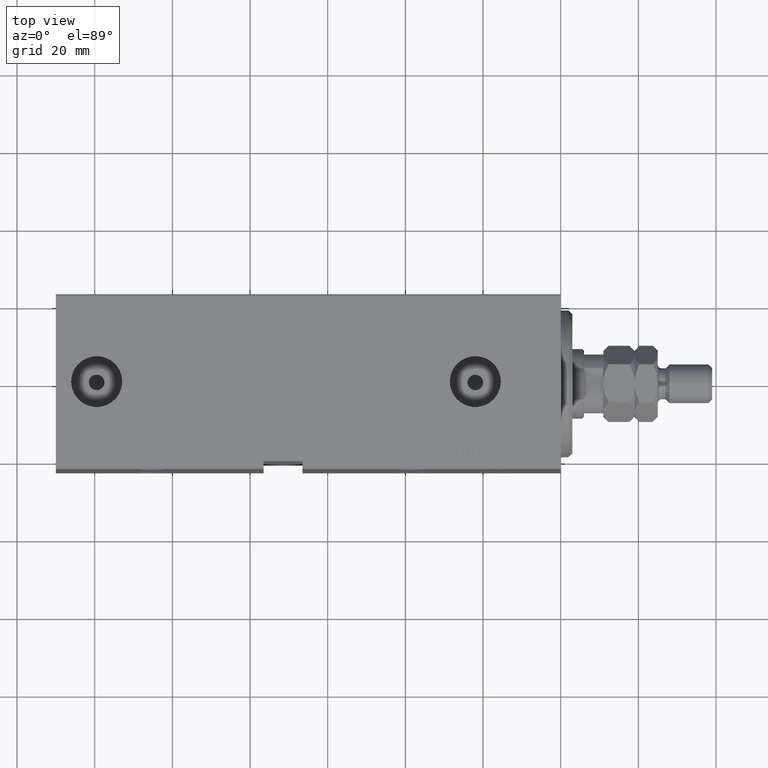
[diagram: clean part render]
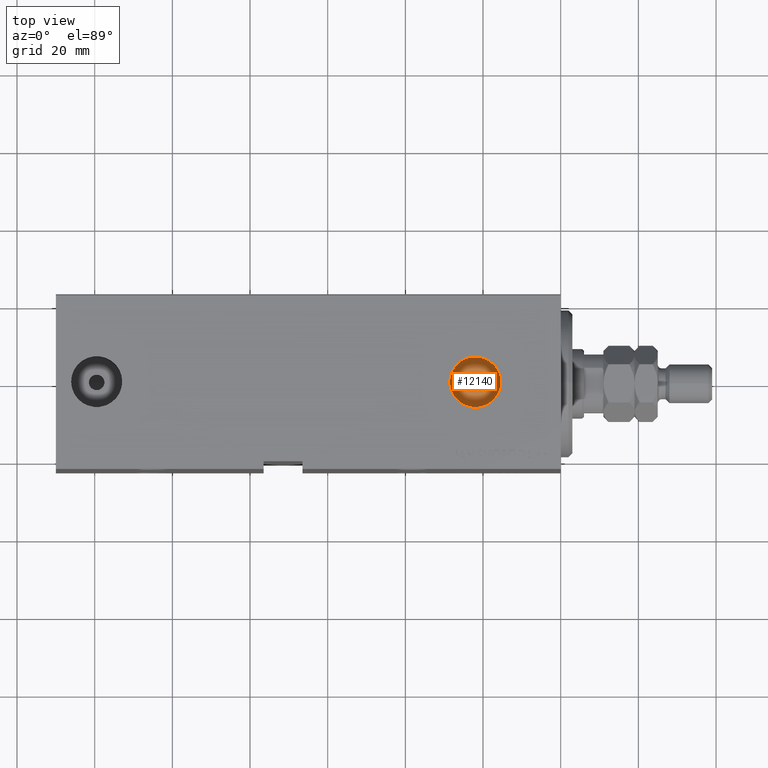
[diagram: same view with one face highlighted and labeled with its STEP entity id]
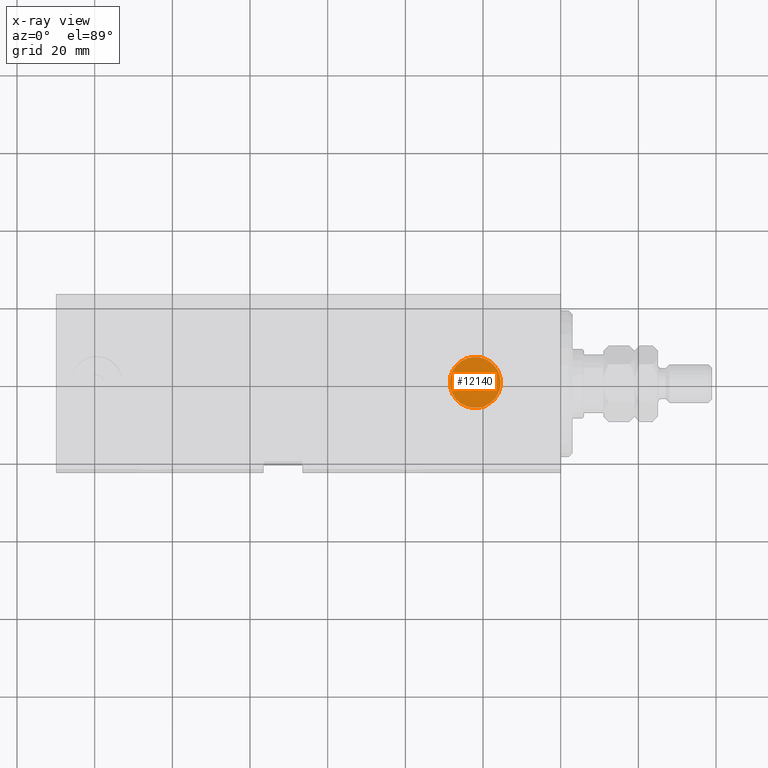
[diagram: x-ray of the same camera — body ghosted, the highlighted face saturated]
A machine part, top view. The second image highlights one B-rep face of the part: STEP entity #12140.
The next image is the same camera in x-ray: the body ghosted, the highlighted face saturated — about 0% of this face is hidden behind the body in this view.
In plain terms, the highlighted planar face has unit normal (0, 0, 1).
Its self-contained STEP definition (entity closure, byte-faithful):
#492 = CIRCLE ( 'NONE', #1255, 6.579999999999999183 ) ;
#1149 = DIRECTION ( 'NONE',  ( 1.000000000000000000, 0.000000000000000000, 0.000000000000000000 ) ) ;
#1255 = AXIS2_PLACEMENT_3D ( 'NONE', #45247, #9183, #24045 ) ;
#1894 = DIRECTION ( 'NONE',  ( 0.000000000000000000, 0.000000000000000000, 1.000000000000000000 ) ) ;
#5144 = CARTESIAN_POINT ( 'NONE',  ( 19.99999999999999645, -4.766494015214640315E-15, 19.23999999999999844 ) ) ;
#5725 = CARTESIAN_POINT ( 'NONE',  ( 28.57999999999999829, -5.011423375044110611E-15, 19.23999999999999844 ) ) ;
#6409 = CIRCLE ( 'NONE', #10115, 2.000000000000001776 ) ;
#6998 = DIRECTION ( 'NONE',  ( 1.000000000000000000, 0.000000000000000000, 0.000000000000000000 ) ) ;
#7098 = EDGE_CURVE ( 'NONE', #25208, #42386, #24060, .T. ) ;
#7908 = CARTESIAN_POINT ( 'NONE',  ( 22.00000000000000000, -5.011423375044110611E-15, 19.23999999999999844 ) ) ;
#9128 = CARTESIAN_POINT ( 'NONE',  ( 22.00000000000000000, -5.011423375044110611E-15, 19.23999999999999844 ) ) ;
#9183 = DIRECTION ( 'NONE',  ( 0.000000000000000000, 0.000000000000000000, 1.000000000000000000 ) ) ;
#10115 = AXIS2_PLACEMENT_3D ( 'NONE', #10479, #38872, #6998 ) ;
#10479 = CARTESIAN_POINT ( 'NONE',  ( 22.00000000000000000, -5.011423375044110611E-15, 19.23999999999999844 ) ) ;
#11861 = ORIENTED_EDGE ( 'NONE', *, *, #42774, .F. ) ;
#11981 = CARTESIAN_POINT ( 'NONE',  ( 24.00000000000000000, -5.011423375044110611E-15, 19.23999999999999844 ) ) ;
#12140 = ADVANCED_FACE ( 'NONE', ( #44512, #16337 ), #41017, .T. ) ;
#14179 = AXIS2_PLACEMENT_3D ( 'NONE', #7908, #22085, #1149 ) ;
#14395 = CARTESIAN_POINT ( 'NONE',  ( 15.41999999999999993, -4.205605781205152358E-15, 19.23999999999999844 ) ) ;
#15854 = CARTESIAN_POINT ( 'NONE',  ( 22.00000000000000000, -5.011423375044110611E-15, 19.23999999999999844 ) ) ;
#16337 = FACE_OUTER_BOUND ( 'NONE', #44001, .T. ) ;
#17022 = DIRECTION ( 'NONE',  ( 0.000000000000000000, 0.000000000000000000, 1.000000000000000000 ) ) ;
#17542 = EDGE_CURVE ( 'NONE', #19694, #30668, #6409, .T. ) ;
#18630 = CIRCLE ( 'NONE', #14179, 2.000000000000001776 ) ;
#19694 = VERTEX_POINT ( 'NONE', #5144 ) ;
#21867 = ORIENTED_EDGE ( 'NONE', *, *, #7098, .T. ) ;
#22085 = DIRECTION ( 'NONE',  ( 0.000000000000000000, 0.000000000000000000, 1.000000000000000000 ) ) ;
#22483 = ORIENTED_EDGE ( 'NONE', *, *, #31765, .T. ) ;
#23768 = DIRECTION ( 'NONE',  ( 1.000000000000000000, 0.000000000000000000, -0.000000000000000000 ) ) ;
#24045 = DIRECTION ( 'NONE',  ( 1.000000000000000000, 0.000000000000000000, 0.000000000000000000 ) ) ;
#24060 = CIRCLE ( 'NONE', #28516, 6.579999999999999183 ) ;
#25208 = VERTEX_POINT ( 'NONE', #14395 ) ;
#28516 = AXIS2_PLACEMENT_3D ( 'NONE', #15854, #1894, #44262 ) ;
#30668 = VERTEX_POINT ( 'NONE', #11981 ) ;
#31090 = ORIENTED_EDGE ( 'NONE', *, *, #17542, .F. ) ;
#31695 = EDGE_LOOP ( 'NONE', ( #11861, #31090 ) ) ;
#31765 = EDGE_CURVE ( 'NONE', #42386, #25208, #492, .T. ) ;
#38872 = DIRECTION ( 'NONE',  ( 0.000000000000000000, 0.000000000000000000, 1.000000000000000000 ) ) ;
#41017 = PLANE ( 'NONE',  #42795 ) ;
#42386 = VERTEX_POINT ( 'NONE', #5725 ) ;
#42774 = EDGE_CURVE ( 'NONE', #30668, #19694, #18630, .T. ) ;
#42795 = AXIS2_PLACEMENT_3D ( 'NONE', #9128, #17022, #23768 ) ;
#44001 = EDGE_LOOP ( 'NONE', ( #22483, #21867 ) ) ;
#44262 = DIRECTION ( 'NONE',  ( 1.000000000000000000, 0.000000000000000000, 0.000000000000000000 ) ) ;
#44512 = FACE_BOUND ( 'NONE', #31695, .T. ) ;
#45247 = CARTESIAN_POINT ( 'NONE',  ( 22.00000000000000000, -5.011423375044110611E-15, 19.23999999999999844 ) ) ;